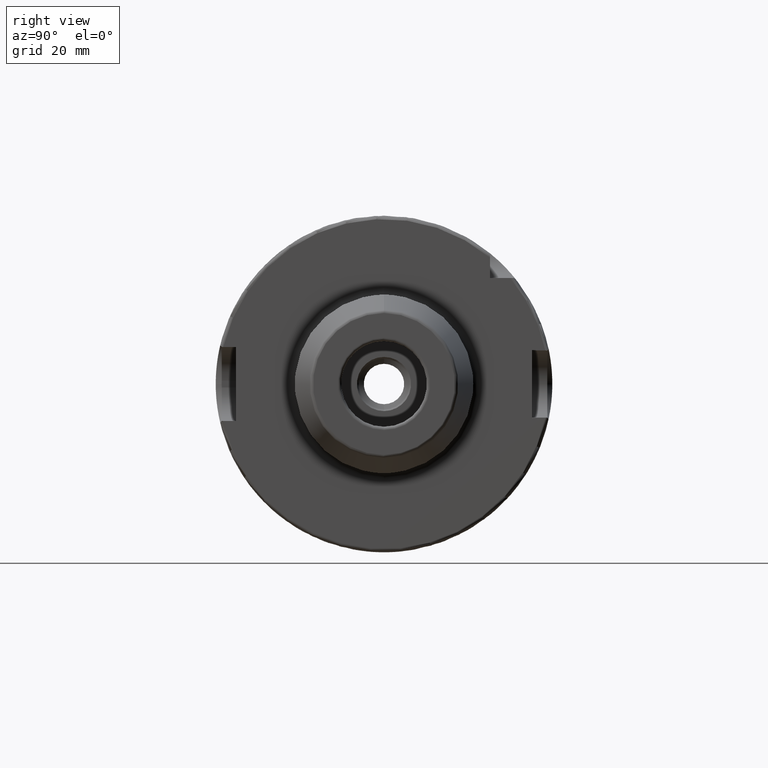
[diagram: clean part render]
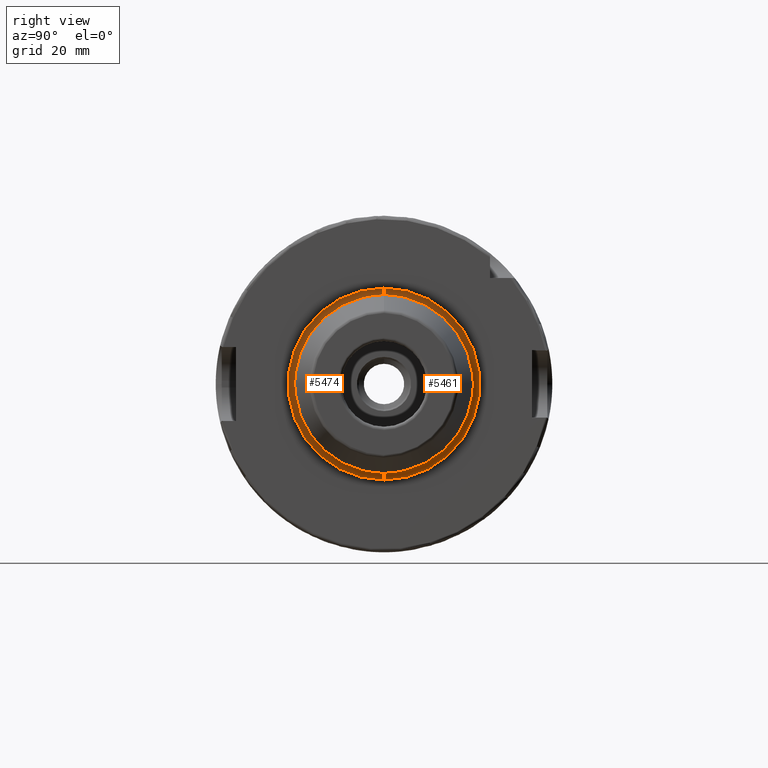
[diagram: same view with one multi-face feature highlighted, each face labeled with its STEP entity id]
A machine part, right view. The highlighted faces form ONE feature: a constant-radius fillet chain: 2 tangent blend faces with common blend radius 2 mm. The faces share edges in the B-rep.
Their STEP definitions:
[1] entity #5461 (Torus):
#1677=CARTESIAN_POINT('',(2.9E1,0.E0,0.E0));
#1678=DIRECTION('',(1.E0,0.E0,0.E0));
#1679=DIRECTION('',(0.E0,0.E0,-1.E0));
#1680=AXIS2_PLACEMENT_3D('',#1677,#1678,#1679);
#2062=CARTESIAN_POINT('',(3.1E1,0.E0,0.E0));
#2063=DIRECTION('',(1.E0,0.E0,0.E0));
#2064=DIRECTION('',(0.E0,0.E0,-1.E0));
#2065=AXIS2_PLACEMENT_3D('',#2062,#2063,#2064);
#2067=CARTESIAN_POINT('',(3.1E1,0.E0,2.85E1));
#2068=DIRECTION('',(0.E0,1.E0,0.E0));
#2069=DIRECTION('',(0.E0,0.E0,-1.E0));
#2070=AXIS2_PLACEMENT_3D('',#2067,#2068,#2069);
#2077=CARTESIAN_POINT('',(3.1E1,0.E0,-2.85E1));
#2078=DIRECTION('',(0.E0,-1.E0,0.E0));
#2079=DIRECTION('',(0.E0,0.E0,1.E0));
#2080=AXIS2_PLACEMENT_3D('',#2077,#2078,#2079);
#3209=CARTESIAN_POINT('',(3.1E1,0.E0,-2.65E1));
#3210=CARTESIAN_POINT('',(3.1E1,0.E0,2.65E1));
#3211=VERTEX_POINT('',#3209);
#3212=VERTEX_POINT('',#3210);
#3213=CARTESIAN_POINT('',(2.9E1,0.E0,-2.85E1));
#3214=CARTESIAN_POINT('',(2.9E1,0.E0,2.85E1));
#3215=VERTEX_POINT('',#3213);
#3216=VERTEX_POINT('',#3214);
#5447=CARTESIAN_POINT('',(3.1E1,0.E0,0.E0));
#5448=DIRECTION('',(1.E0,0.E0,0.E0));
#5449=DIRECTION('',(0.E0,0.E0,1.E0));
#5450=AXIS2_PLACEMENT_3D('',#5447,#5448,#5449);
#5451=TOROIDAL_SURFACE('',#5450,2.85E1,2.E0);
#5452=ORIENTED_EDGE('',*,*,#5037,.F.);
#5454=ORIENTED_EDGE('',*,*,#5453,.F.);
#5456=ORIENTED_EDGE('',*,*,#5455,.T.);
#5458=ORIENTED_EDGE('',*,*,#5457,.T.);
#5459=EDGE_LOOP('',(#5452,#5454,#5456,#5458));
#5460=FACE_OUTER_BOUND('',#5459,.F.);
#5461=ADVANCED_FACE('',(#5460),#5451,.F.);
#1681=CIRCLE('',#1680,2.85E1);
#2066=CIRCLE('',#2065,2.65E1);
#2071=CIRCLE('',#2070,2.E0);
#2081=CIRCLE('',#2080,2.E0);
#5037=EDGE_CURVE('',#3215,#3216,#1681,.T.);
#5453=EDGE_CURVE('',#3211,#3215,#2081,.T.);
#5455=EDGE_CURVE('',#3211,#3212,#2066,.T.);
#5457=EDGE_CURVE('',#3212,#3216,#2071,.T.);
[2] entity #5474 (Torus):
#1682=CARTESIAN_POINT('',(2.9E1,0.E0,0.E0));
#1683=DIRECTION('',(1.E0,0.E0,0.E0));
#1684=DIRECTION('',(0.E0,0.E0,1.E0));
#1685=AXIS2_PLACEMENT_3D('',#1682,#1683,#1684);
#2067=CARTESIAN_POINT('',(3.1E1,0.E0,2.85E1));
#2068=DIRECTION('',(0.E0,1.E0,0.E0));
#2069=DIRECTION('',(0.E0,0.E0,-1.E0));
#2070=AXIS2_PLACEMENT_3D('',#2067,#2068,#2069);
#2072=CARTESIAN_POINT('',(3.1E1,0.E0,0.E0));
#2073=DIRECTION('',(-1.E0,0.E0,0.E0));
#2074=DIRECTION('',(0.E0,0.E0,-1.E0));
#2075=AXIS2_PLACEMENT_3D('',#2072,#2073,#2074);
#2077=CARTESIAN_POINT('',(3.1E1,0.E0,-2.85E1));
#2078=DIRECTION('',(0.E0,-1.E0,0.E0));
#2079=DIRECTION('',(0.E0,0.E0,1.E0));
#2080=AXIS2_PLACEMENT_3D('',#2077,#2078,#2079);
#3209=CARTESIAN_POINT('',(3.1E1,0.E0,-2.65E1));
#3210=CARTESIAN_POINT('',(3.1E1,0.E0,2.65E1));
#3211=VERTEX_POINT('',#3209);
#3212=VERTEX_POINT('',#3210);
#3213=CARTESIAN_POINT('',(2.9E1,0.E0,-2.85E1));
#3214=CARTESIAN_POINT('',(2.9E1,0.E0,2.85E1));
#3215=VERTEX_POINT('',#3213);
#3216=VERTEX_POINT('',#3214);
#5462=CARTESIAN_POINT('',(3.1E1,0.E0,0.E0));
#5463=DIRECTION('',(1.E0,0.E0,0.E0));
#5464=DIRECTION('',(0.E0,0.E0,1.E0));
#5465=AXIS2_PLACEMENT_3D('',#5462,#5463,#5464);
#5466=TOROIDAL_SURFACE('',#5465,2.85E1,2.E0);
#5467=ORIENTED_EDGE('',*,*,#5039,.F.);
#5468=ORIENTED_EDGE('',*,*,#5457,.F.);
#5470=ORIENTED_EDGE('',*,*,#5469,.F.);
#5471=ORIENTED_EDGE('',*,*,#5453,.T.);
#5472=EDGE_LOOP('',(#5467,#5468,#5470,#5471));
#5473=FACE_OUTER_BOUND('',#5472,.F.);
#5474=ADVANCED_FACE('',(#5473),#5466,.F.);
#1686=CIRCLE('',#1685,2.85E1);
#2071=CIRCLE('',#2070,2.E0);
#2076=CIRCLE('',#2075,2.65E1);
#2081=CIRCLE('',#2080,2.E0);
#5039=EDGE_CURVE('',#3216,#3215,#1686,.T.);
#5453=EDGE_CURVE('',#3211,#3215,#2081,.T.);
#5457=EDGE_CURVE('',#3212,#3216,#2071,.T.);
#5469=EDGE_CURVE('',#3211,#3212,#2076,.T.);